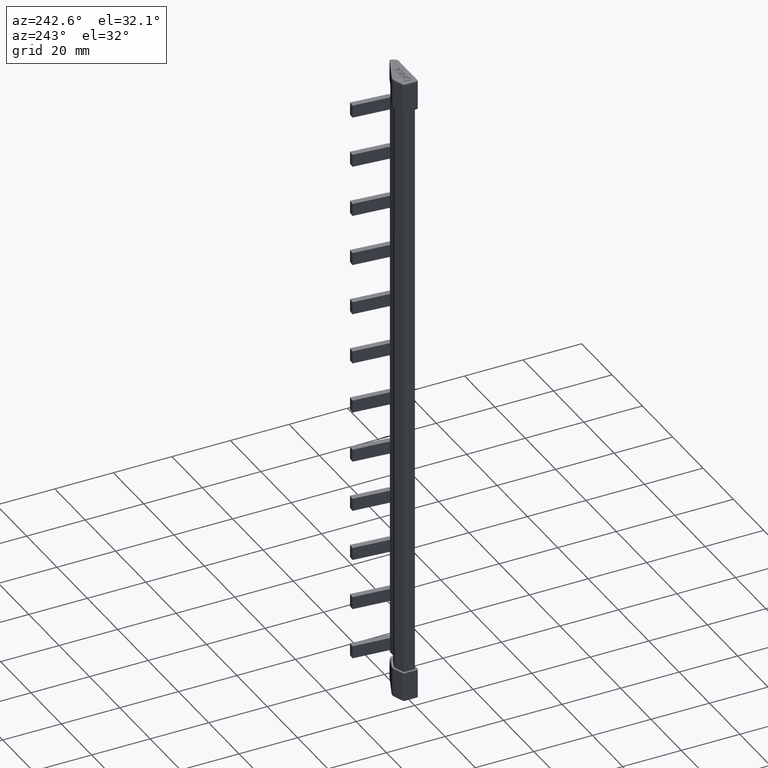
[diagram: clean part render]
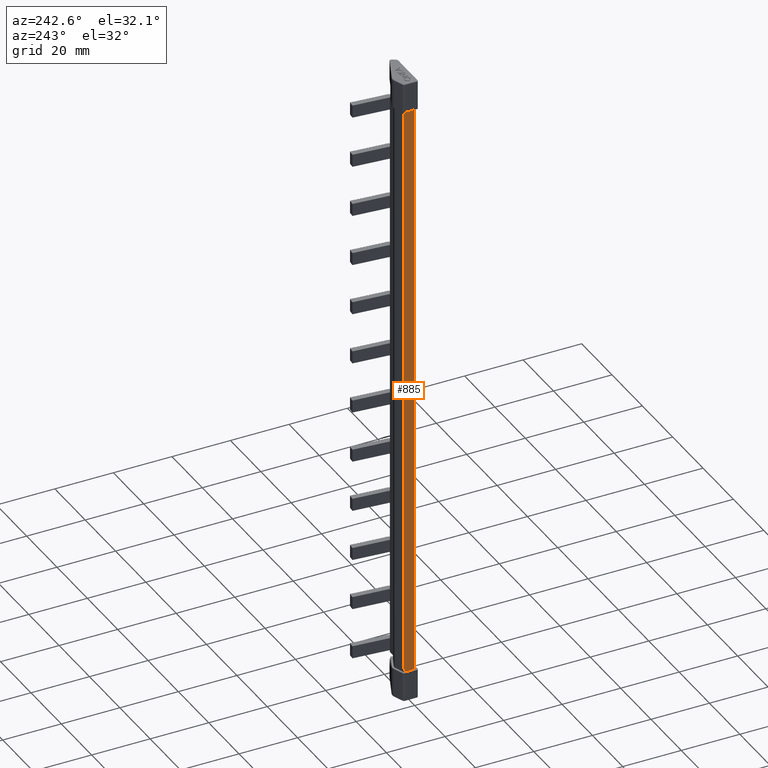
[diagram: same view with one face highlighted and labeled with its STEP entity id]
A machine part, auxiliary view. The second image highlights one B-rep face of the part: STEP entity #885.
In plain terms, the highlighted planar face has unit normal (1, 0, -0).
Its self-contained STEP definition (entity closure, byte-faithful):
#349 = DIRECTION ( 'NONE',  ( -3.563533965728333600E-014, 1.000000000000000000, 0.0000000000000000000 ) ) ;
#353 = FACE_OUTER_BOUND ( 'NONE', #15904, .T. ) ;
#377 = PLANE ( 'NONE',  #4700 ) ;
#380 = CARTESIAN_POINT ( 'NONE',  ( -0.5000000000000559600, 3.615511274208504900, 219.0000000000000000 ) ) ;
#381 = DIRECTION ( 'NONE',  ( 1.000000000000000000, 3.563533965728333600E-014, -0.0000000000000000000 ) ) ;
#885 = ADVANCED_FACE ( 'NONE', ( #353 ), #377, .F. ) ;
#4700 = AXIS2_PLACEMENT_3D ( 'NONE', #380, #381, #349 ) ;
#7157 = EDGE_CURVE ( 'NONE', #18768, #18761, #9318, .T. ) ;
#7209 = EDGE_CURVE ( 'NONE', #18761, #18773, #9503, .T. ) ;
#7217 = EDGE_CURVE ( 'NONE', #18626, #15658, #9537, .T. ) ;
#7218 = EDGE_CURVE ( 'NONE', #18533, #18768, #9504, .T. ) ;
#7224 = EDGE_CURVE ( 'NONE', #18841, #15649, #9584, .T. ) ;
#7245 = EDGE_CURVE ( 'NONE', #18773, #18841, #9623, .T. ) ;
#7316 = EDGE_CURVE ( 'NONE', #15649, #15658, #17182, .T. ) ;
#7515 = EDGE_CURVE ( 'NONE', #18626, #18533, #17791, .T. ) ;
#7969 = CARTESIAN_POINT ( 'NONE',  ( -0.4999997471736402100, 3.615511272077403900, 209.0000000000000300 ) ) ;
#7975 = CARTESIAN_POINT ( 'NONE',  ( -0.4999998163773843300, 0.4999999971585248900, 209.9000000000000100 ) ) ;
#8002 = CARTESIAN_POINT ( 'NONE',  ( -0.4999998340827205300, 3.615511272077400800, 209.9000000000000100 ) ) ;
#8042 = CARTESIAN_POINT ( 'NONE',  ( -0.4999998530400069900, 0.5000000000000008900, 9.099999999999997900 ) ) ;
#8893 = CARTESIAN_POINT ( 'NONE',  ( -0.4999998278394320900, 3.615511272077399900, 9.099999999999999600 ) ) ;
#8908 = CARTESIAN_POINT ( 'NONE',  ( -0.5000000000000559600, 3.615511272787769000, 9.999999999999980500 ) ) ;
#9221 = CARTESIAN_POINT ( 'NONE',  ( -0.4999997511312341300, 3.963709902452906800, 209.0000000000000300 ) ) ;
#9296 = CARTESIAN_POINT ( 'NONE',  ( -0.4999997511312341300, 3.963709902452906800, 9.999999999999994700 ) ) ;
#9318 = LINE ( 'NONE', #9329, #13625 ) ;
#9329 = CARTESIAN_POINT ( 'NONE',  ( -0.5000000000000559600, 3.615511272787769000, 219.0000000000000000 ) ) ;
#9342 = DIRECTION ( 'NONE',  ( 0.0000000000000000000, 0.0000000000000000000, 1.000000000000000000 ) ) ;
#9503 = LINE ( 'NONE', #9508, #21362 ) ;
#9504 = LINE ( 'NONE', #9527, #21365 ) ;
#9508 = CARTESIAN_POINT ( 'NONE',  ( -0.4999998419835454700, -5.682891657254884900E-009, 209.9000000000000100 ) ) ;
#9520 = CARTESIAN_POINT ( 'NONE',  ( -0.4999997511312341300, 3.963709902452906800, 9.999999999999994700 ) ) ;
#9527 = CARTESIAN_POINT ( 'NONE',  ( -0.4999997511312341300, 3.963709902452906800, 209.0000000000000300 ) ) ;
#9533 = DIRECTION ( 'NONE',  ( 1.136590874625327900E-008, -0.9999999999999998900, 2.593268938009537600E-023 ) ) ;
#9537 = LINE ( 'NONE', #9520, #21299 ) ;
#9540 = DIRECTION ( 'NONE',  ( -1.522599007603421600E-056, -1.000000000000000000, -3.939912114750718400E-031 ) ) ;
#9541 = DIRECTION ( 'NONE',  ( 1.136590874625328100E-008, -0.9999999999999998900, 0.0000000000000000000 ) ) ;
#9573 = DIRECTION ( 'NONE',  ( 1.522599007603421600E-056, 1.000000000000000000, -3.939912114750718400E-031 ) ) ;
#9581 = CARTESIAN_POINT ( 'NONE',  ( -0.4999998170103917600, -5.682891657254884900E-009, 9.099999999999997900 ) ) ;
#9584 = LINE ( 'NONE', #9581, #21320 ) ;
#9593 = DIRECTION ( 'NONE',  ( -0.0000000000000000000, -0.0000000000000000000, -1.000000000000000000 ) ) ;
#9623 = LINE ( 'NONE', #9625, #21266 ) ;
#9625 = CARTESIAN_POINT ( 'NONE',  ( -0.4999999999999449300, 0.4999999985792628100, 219.0000000000000000 ) ) ;
#13625 = VECTOR ( 'NONE', #9342, 1000.000000000000000 ) ;
#15462 = ORIENTED_EDGE ( 'NONE', *, *, #7515, .F. ) ;
#15463 = ORIENTED_EDGE ( 'NONE', *, *, #7224, .F. ) ;
#15518 = ORIENTED_EDGE ( 'NONE', *, *, #7218, .F. ) ;
#15523 = ORIENTED_EDGE ( 'NONE', *, *, #7217, .T. ) ;
#15528 = ORIENTED_EDGE ( 'NONE', *, *, #7157, .F. ) ;
#15565 = ORIENTED_EDGE ( 'NONE', *, *, #7245, .F. ) ;
#15567 = ORIENTED_EDGE ( 'NONE', *, *, #7316, .F. ) ;
#15571 = ORIENTED_EDGE ( 'NONE', *, *, #7209, .F. ) ;
#15649 = VERTEX_POINT ( 'NONE', #8893 ) ;
#15658 = VERTEX_POINT ( 'NONE', #8908 ) ;
#15904 = EDGE_LOOP ( 'NONE', ( #15528, #15518, #15462, #15523, #15567, #15463, #15565, #15571 ) ) ;
#17141 = CARTESIAN_POINT ( 'NONE',  ( -0.5000000000000559600, 3.615511272787769000, 219.0000000000000000 ) ) ;
#17148 = DIRECTION ( 'NONE',  ( 0.0000000000000000000, 0.0000000000000000000, 1.000000000000000000 ) ) ;
#17182 = LINE ( 'NONE', #17141, #21476 ) ;
#17787 = CARTESIAN_POINT ( 'NONE',  ( -0.4999997511312341300, 3.963709902452906800, 1.368580225419524500 ) ) ;
#17790 = DIRECTION ( 'NONE',  ( 0.0000000000000000000, 0.0000000000000000000, 1.000000000000000000 ) ) ;
#17791 = LINE ( 'NONE', #17787, #21912 ) ;
#18533 = VERTEX_POINT ( 'NONE', #9221 ) ;
#18626 = VERTEX_POINT ( 'NONE', #9296 ) ;
#18761 = VERTEX_POINT ( 'NONE', #8002 ) ;
#18768 = VERTEX_POINT ( 'NONE', #7969 ) ;
#18773 = VERTEX_POINT ( 'NONE', #7975 ) ;
#18841 = VERTEX_POINT ( 'NONE', #8042 ) ;
#21266 = VECTOR ( 'NONE', #9593, 1000.000000000000000 ) ;
#21299 = VECTOR ( 'NONE', #9533, 1000.000000000000100 ) ;
#21320 = VECTOR ( 'NONE', #9573, 1000.000000000000000 ) ;
#21362 = VECTOR ( 'NONE', #9540, 1000.000000000000000 ) ;
#21365 = VECTOR ( 'NONE', #9541, 1000.000000000000100 ) ;
#21476 = VECTOR ( 'NONE', #17148, 1000.000000000000000 ) ;
#21912 = VECTOR ( 'NONE', #17790, 1000.000000000000000 ) ;